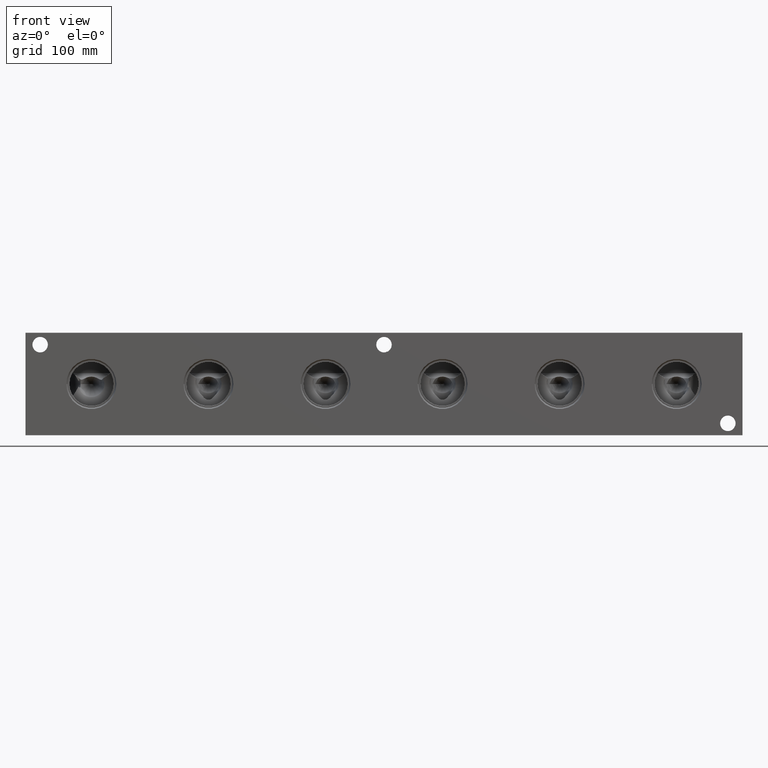
[diagram: clean part render]
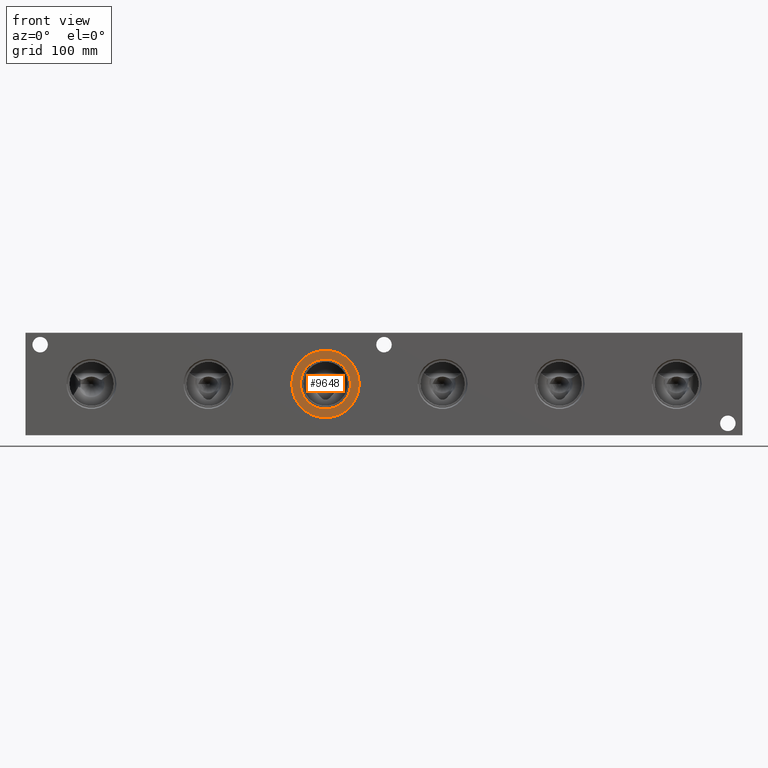
[diagram: same view with one face highlighted and labeled with its STEP entity id]
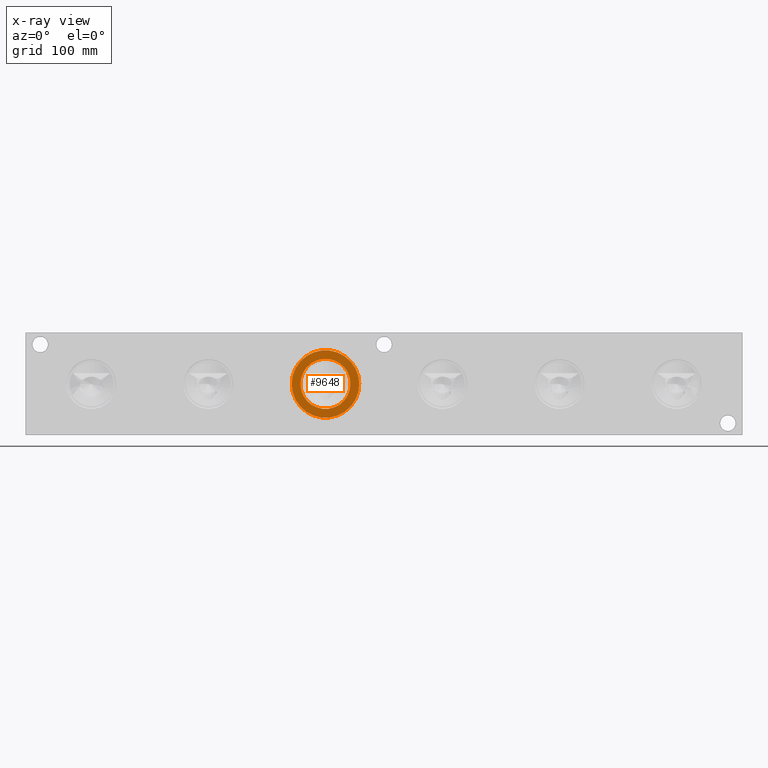
[diagram: x-ray of the same camera — body ghosted, the highlighted face saturated]
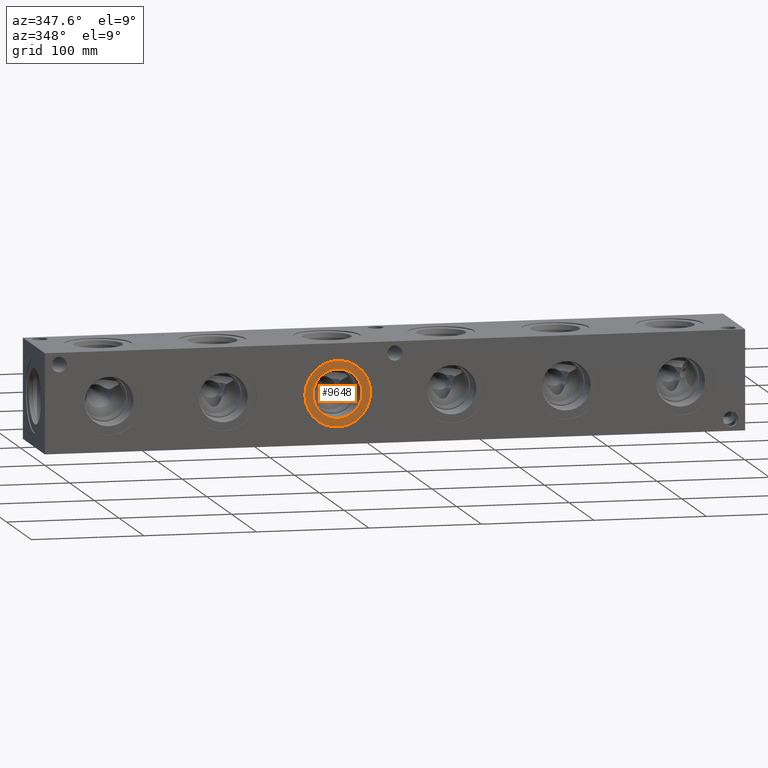
[diagram: same view with one face highlighted and labeled with its STEP entity id]
A machine part, front view. The second image highlights one B-rep face of the part: STEP entity #9648.
The next image is the same camera in x-ray: the body ghosted, the highlighted face saturated — about 0% of this face is hidden behind the body in this view.
A second angle (auxiliary view) of the same face is appended — the face is thin or edge-on in the first view.
In plain terms, the highlighted planar face has unit normal (0, -1, 0).
Its self-contained STEP definition (entity closure, byte-faithful):
#372=CIRCLE('',#10221,29.2862);
#373=CIRCLE('',#10222,29.2862);
#374=CIRCLE('',#10223,21.7551);
#562=FACE_BOUND('',#1953,.T.);
#1394=FACE_OUTER_BOUND('',#1952,.T.);
#1952=EDGE_LOOP('',(#8067,#8068));
#1953=EDGE_LOOP('',(#8069));
#4389=VERTEX_POINT('',#16983);
#4390=VERTEX_POINT('',#16984);
#4391=VERTEX_POINT('',#16987);
#5675=EDGE_CURVE('',#4389,#4390,#372,.T.);
#5676=EDGE_CURVE('',#4390,#4389,#373,.T.);
#5677=EDGE_CURVE('',#4391,#4391,#374,.T.);
#8067=ORIENTED_EDGE('',*,*,#5675,.T.);
#8068=ORIENTED_EDGE('',*,*,#5676,.T.);
#8069=ORIENTED_EDGE('',*,*,#5677,.F.);
#8927=PLANE('',#10220);
#9648=ADVANCED_FACE('',(#1394,#562),#8927,.T.);
#10220=AXIS2_PLACEMENT_3D('',#16982,#12049,#12050);
#10221=AXIS2_PLACEMENT_3D('',#16985,#12051,#12052);
#10222=AXIS2_PLACEMENT_3D('',#16986,#12053,#12054);
#10223=AXIS2_PLACEMENT_3D('',#16988,#12055,#12056);
#12049=DIRECTION('center_axis',(0.,-1.,0.));
#12050=DIRECTION('ref_axis',(1.,0.,0.));
#12051=DIRECTION('center_axis',(0.,-1.,0.));
#12052=DIRECTION('ref_axis',(1.,0.,0.));
#12053=DIRECTION('center_axis',(0.,-1.,0.));
#12054=DIRECTION('ref_axis',(1.,0.,0.));
#12055=DIRECTION('center_axis',(0.,-1.,0.));
#12056=DIRECTION('ref_axis',(1.,0.,0.));
#16982=CARTESIAN_POINT('Origin',(260.35,0.7874,44.45));
#16983=CARTESIAN_POINT('',(289.6362,0.7874,44.45));
#16984=CARTESIAN_POINT('',(231.0638,0.7874,44.45));
#16985=CARTESIAN_POINT('Origin',(260.35,0.7874,44.45));
#16986=CARTESIAN_POINT('Origin',(260.35,0.7874,44.45));
#16987=CARTESIAN_POINT('',(238.5949,0.7874,44.45));
#16988=CARTESIAN_POINT('Origin',(260.35,0.7874,44.45));